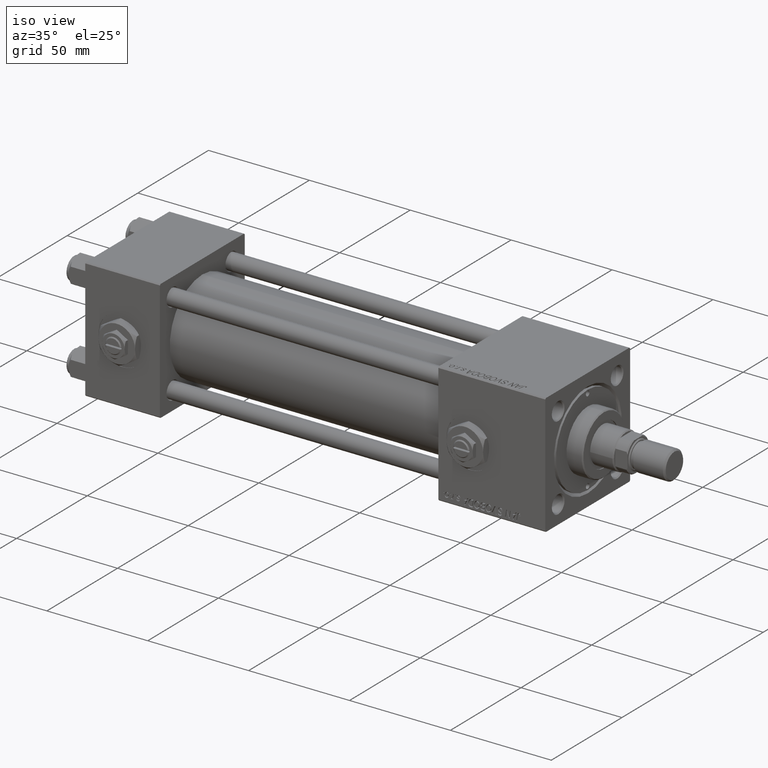
[diagram: clean part render]
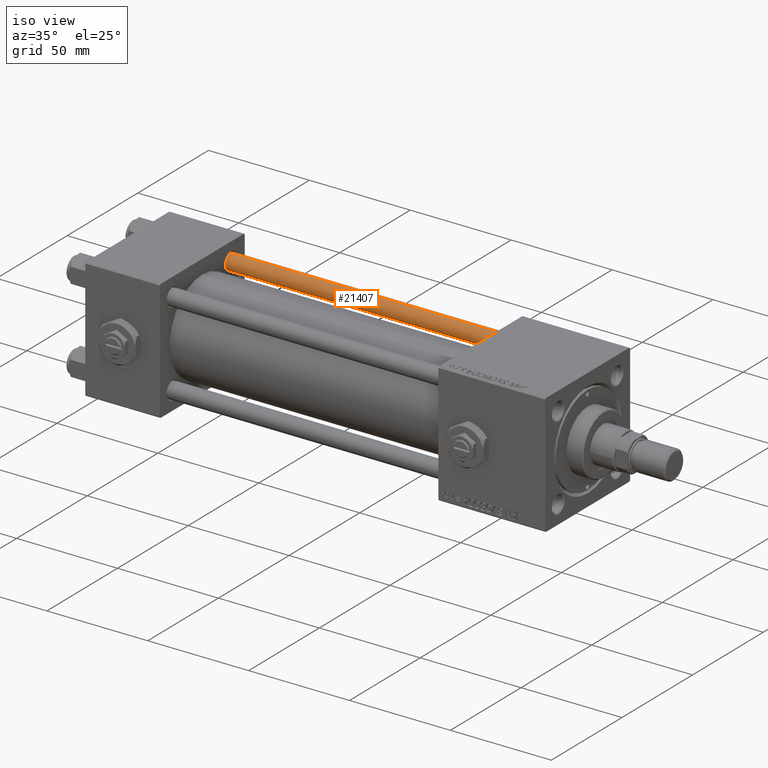
[diagram: same view with one face highlighted and labeled with its STEP entity id]
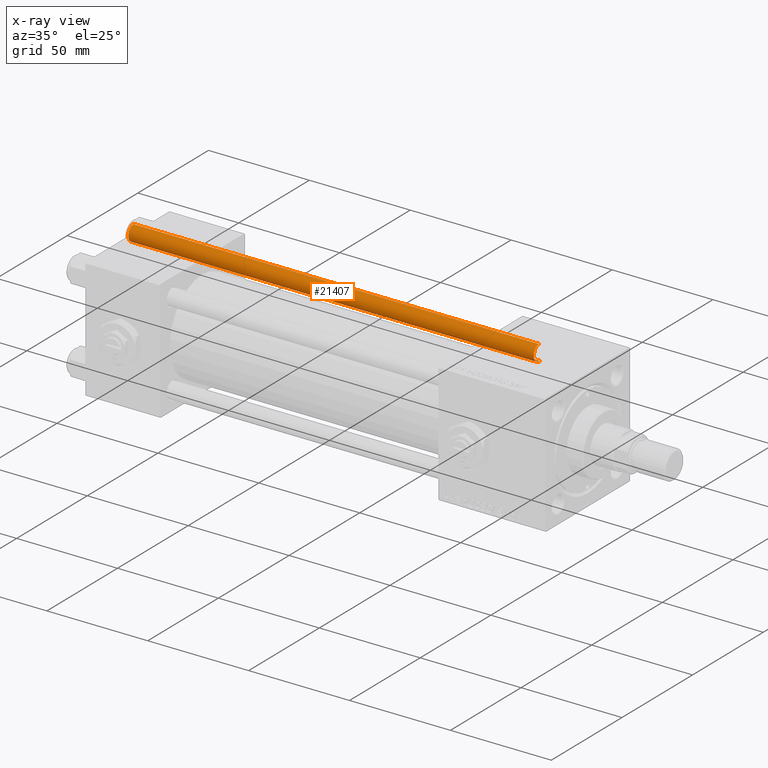
[diagram: x-ray of the same camera — body ghosted, the highlighted face saturated]
A machine part, iso view. The second image highlights one B-rep face of the part: STEP entity #21407.
The next image is the same camera in x-ray: the body ghosted, the highlighted face saturated — about 0% of this face is hidden behind the body in this view.
In plain terms, the highlighted cylindrical surface (edge-blend (fillet) strip) has radius 4 mm, axis along (-1, 0, 0).
Its self-contained STEP definition (entity closure, byte-faithful):
#516 = EDGE_LOOP ( 'NONE', ( #29210, #32337, #32756, #19424 ) ) ;
#2092 = EDGE_CURVE ( 'NONE', #28748, #17283, #16805, .T. ) ;
#3291 = AXIS2_PLACEMENT_3D ( 'NONE', #3639, #40275, #44031 ) ;
#3639 = CARTESIAN_POINT ( 'NONE',  ( 0.000000000000000000, 0.000000000000000000, 202.0000000000000000 ) ) ;
#3777 = CARTESIAN_POINT ( 'NONE',  ( -4.000000000000000000, 0.000000000000000000, 202.0000000000000000 ) ) ;
#8575 = CARTESIAN_POINT ( 'NONE',  ( 4.000000000000000000, 4.898587196589412829E-16, 201.5000000000000000 ) ) ;
#10560 = EDGE_CURVE ( 'NONE', #32660, #17283, #24411, .T. ) ;
#16083 = AXIS2_PLACEMENT_3D ( 'NONE', #25669, #37952, #33959 ) ;
#16805 = LINE ( 'NONE', #33135, #34421 ) ;
#17283 = VERTEX_POINT ( 'NONE', #38785 ) ;
#17671 = CARTESIAN_POINT ( 'NONE',  ( -4.000000000000000000, 0.000000000000000000, 201.5000000000000000 ) ) ;
#19424 = ORIENTED_EDGE ( 'NONE', *, *, #10560, .T. ) ;
#21407 = ADVANCED_FACE ( 'NONE', ( #27989 ), #24260, .T. ) ;
#24260 = CYLINDRICAL_SURFACE ( 'NONE', #3291, 4.000000000000000000 ) ;
#24411 = CIRCLE ( 'NONE', #48284, 4.000000000000000000 ) ;
#24658 = CIRCLE ( 'NONE', #16083, 4.000000000000000000 ) ;
#25502 = EDGE_CURVE ( 'NONE', #28748, #39791, #24658, .T. ) ;
#25669 = CARTESIAN_POINT ( 'NONE',  ( 0.000000000000000000, 0.000000000000000000, 201.5000000000000000 ) ) ;
#25925 = VECTOR ( 'NONE', #39877, 1000.000000000000000 ) ;
#27989 = FACE_OUTER_BOUND ( 'NONE', #516, .T. ) ;
#28748 = VERTEX_POINT ( 'NONE', #8575 ) ;
#29210 = ORIENTED_EDGE ( 'NONE', *, *, #2092, .F. ) ;
#32337 = ORIENTED_EDGE ( 'NONE', *, *, #25502, .T. ) ;
#32660 = VERTEX_POINT ( 'NONE', #44733 ) ;
#32756 = ORIENTED_EDGE ( 'NONE', *, *, #41150, .T. ) ;
#33135 = CARTESIAN_POINT ( 'NONE',  ( 4.000000000000000000, 4.898587196589412829E-16, 202.0000000000000000 ) ) ;
#33959 = DIRECTION ( 'NONE',  ( 1.000000000000000000, 0.000000000000000000, 0.000000000000000000 ) ) ;
#34421 = VECTOR ( 'NONE', #45411, 1000.000000000000000 ) ;
#36323 = DIRECTION ( 'NONE',  ( 1.000000000000000000, 0.000000000000000000, 0.000000000000000000 ) ) ;
#37952 = DIRECTION ( 'NONE',  ( 0.000000000000000000, 0.000000000000000000, -1.000000000000000000 ) ) ;
#38785 = CARTESIAN_POINT ( 'NONE',  ( 4.000000000000000000, 4.898587196589412829E-16, 0.5000000000000004441 ) ) ;
#39791 = VERTEX_POINT ( 'NONE', #17671 ) ;
#39877 = DIRECTION ( 'NONE',  ( -0.000000000000000000, -0.000000000000000000, -1.000000000000000000 ) ) ;
#40142 = LINE ( 'NONE', #3777, #25925 ) ;
#40275 = DIRECTION ( 'NONE',  ( -0.000000000000000000, -0.000000000000000000, -1.000000000000000000 ) ) ;
#40874 = DIRECTION ( 'NONE',  ( -0.000000000000000000, -0.000000000000000000, 1.000000000000000000 ) ) ;
#41150 = EDGE_CURVE ( 'NONE', #39791, #32660, #40142, .T. ) ;
#44031 = DIRECTION ( 'NONE',  ( -1.000000000000000000, 0.000000000000000000, 0.000000000000000000 ) ) ;
#44733 = CARTESIAN_POINT ( 'NONE',  ( -4.000000000000000000, 0.000000000000000000, 0.5000000000000004441 ) ) ;
#45411 = DIRECTION ( 'NONE',  ( -0.000000000000000000, -0.000000000000000000, -1.000000000000000000 ) ) ;
#48284 = AXIS2_PLACEMENT_3D ( 'NONE', #51656, #40874, #36323 ) ;
#51656 = CARTESIAN_POINT ( 'NONE',  ( 0.000000000000000000, 0.000000000000000000, 0.5000000000000004441 ) ) ;